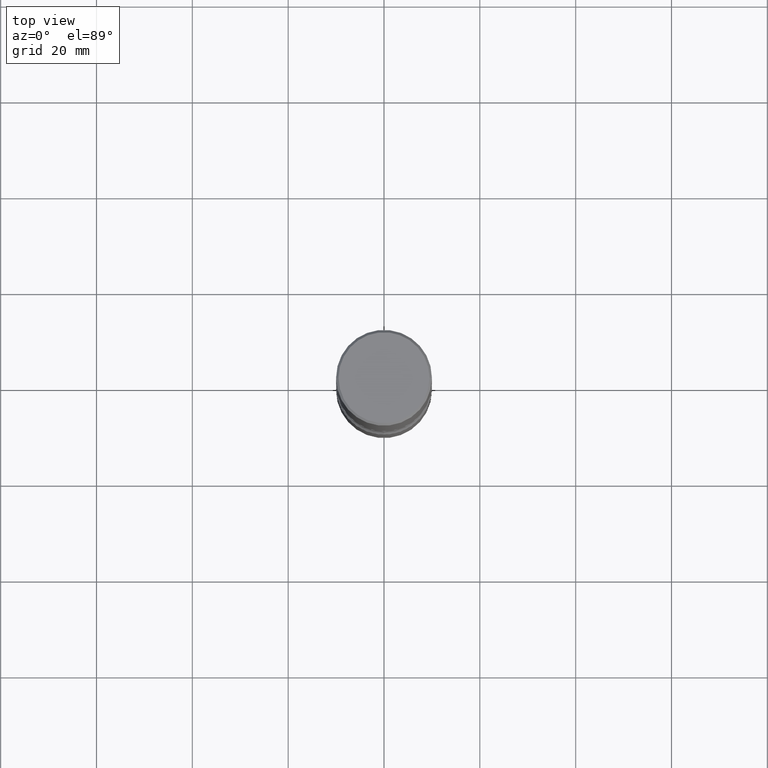
[diagram: clean part render]
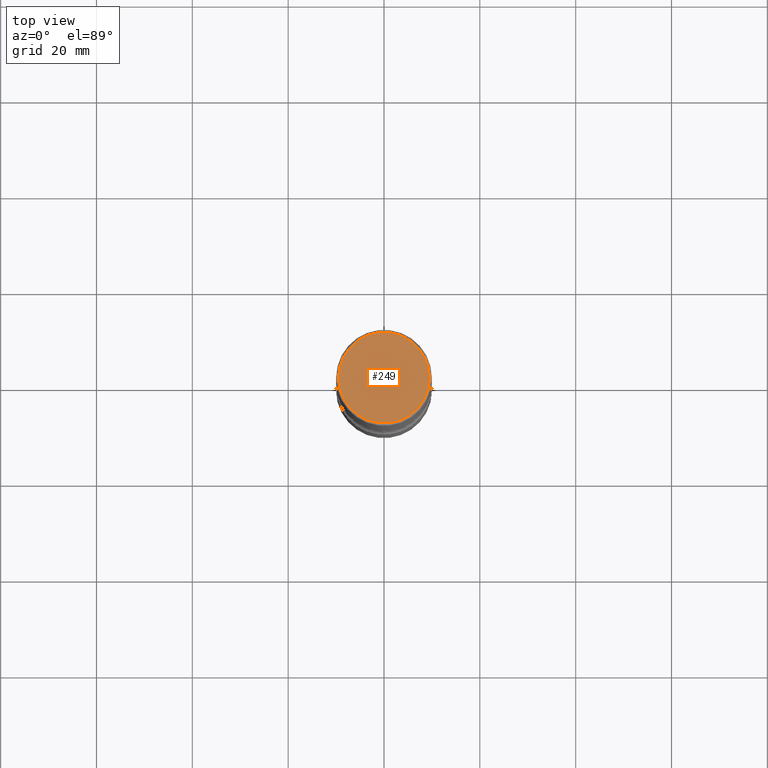
[diagram: same view with one face highlighted and labeled with its STEP entity id]
A machine part, top view. The second image highlights one B-rep face of the part: STEP entity #249.
In plain terms, the highlighted planar face has unit normal (0, -0, -1).
Its self-contained STEP definition (entity closure, byte-faithful):
#19 = VERTEX_POINT ( 'NONE', #308 ) ;
#47 = DIRECTION ( 'NONE',  ( 1.000000000000000000, -6.982962677686266711E-15, 4.876212485538976239E-29 ) ) ;
#61 = ORIENTED_EDGE ( 'NONE', *, *, #200, .T. ) ;
#112 = AXIS2_PLACEMENT_3D ( 'NONE', #395, #161, #346 ) ;
#116 = VERTEX_POINT ( 'NONE', #235 ) ;
#123 = PLANE ( 'NONE',  #112 ) ;
#135 = CARTESIAN_POINT ( 'NONE',  ( -2.087702828670439639E-46, 2.980686340760894400E-32, 8.537024980200822558E-18 ) ) ;
#161 = DIRECTION ( 'NONE',  ( 2.438088387897960049E-29, -3.491481338843145188E-15, -1.000000000000000000 ) ) ;
#166 = CIRCLE ( 'NONE', #483, 0.3736999999999999211 ) ;
#200 = EDGE_CURVE ( 'NONE', #116, #19, #323, .T. ) ;
#210 = DIRECTION ( 'NONE',  ( -2.445468806185136597E-29, 3.491481338843145583E-15, 1.000000000000000000 ) ) ;
#235 = CARTESIAN_POINT ( 'NONE',  ( 0.3736999999999999211, -2.667287895133367964E-15, 8.537024980219274507E-18 ) ) ;
#249 = ADVANCED_FACE ( 'NONE', ( #441 ), #123, .F. ) ;
#294 = EDGE_CURVE ( 'NONE', #19, #116, #166, .T. ) ;
#302 = EDGE_LOOP ( 'NONE', ( #413, #61 ) ) ;
#308 = CARTESIAN_POINT ( 'NONE',  ( -0.3736999999999999211, 2.644447966039788269E-15, 8.537024980182450727E-18 ) ) ;
#323 = CIRCLE ( 'NONE', #380, 0.3736999999999999211 ) ;
#346 = DIRECTION ( 'NONE',  ( -1.000000000000000000, 6.982962677686265922E-15, -4.876176775795935793E-29 ) ) ;
#351 = CARTESIAN_POINT ( 'NONE',  ( -2.087702828670439639E-46, 2.980686340760894400E-32, 8.537024980200822558E-18 ) ) ;
#380 = AXIS2_PLACEMENT_3D ( 'NONE', #135, #484, #47 ) ;
#395 = CARTESIAN_POINT ( 'NONE',  ( 2.609533152651356620E-15, 0.3736999999999999211, -1.300498063835582814E-15 ) ) ;
#413 = ORIENTED_EDGE ( 'NONE', *, *, #294, .T. ) ;
#441 = FACE_OUTER_BOUND ( 'NONE', #302, .T. ) ;
#483 = AXIS2_PLACEMENT_3D ( 'NONE', #351, #210, #557 ) ;
#484 = DIRECTION ( 'NONE',  ( -2.445468806185136597E-29, 3.491481338843145583E-15, 1.000000000000000000 ) ) ;
#557 = DIRECTION ( 'NONE',  ( 1.000000000000000000, -6.982962677686266711E-15, 4.876212485538976239E-29 ) ) ;